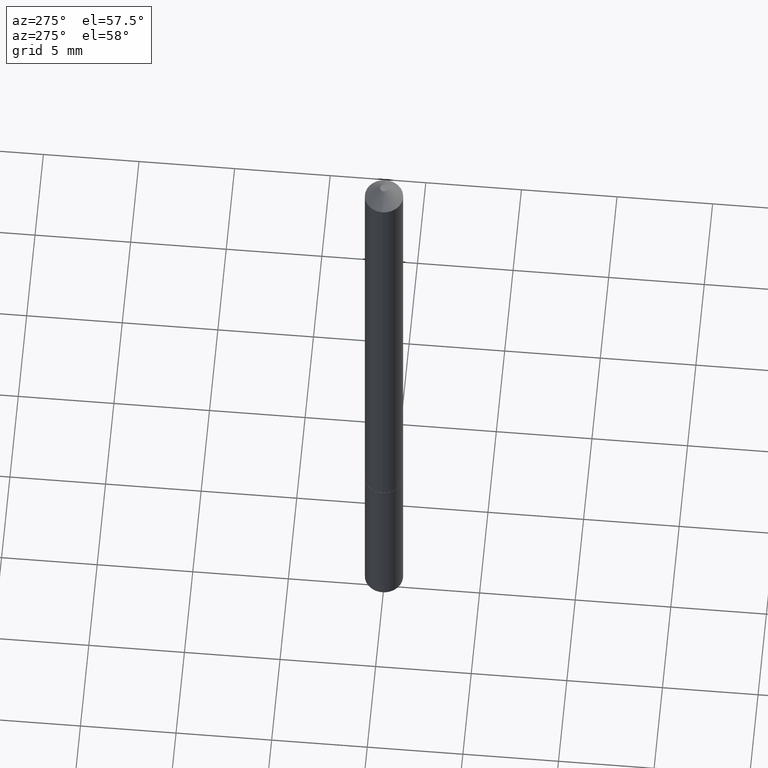
[diagram: clean part render]
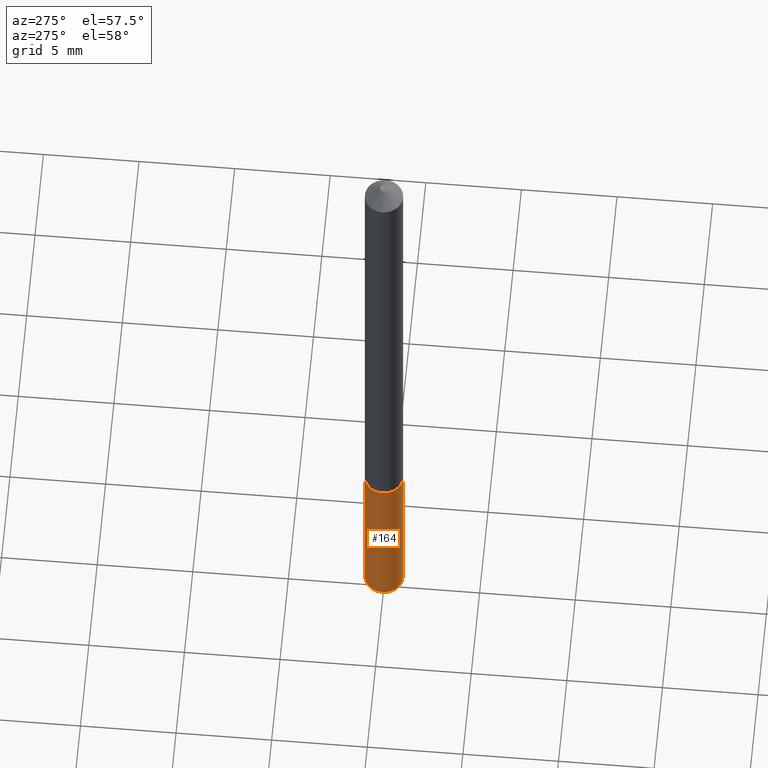
[diagram: same view with one face highlighted and labeled with its STEP entity id]
A machine part, auxiliary view. The second image highlights one B-rep face of the part: STEP entity #164.
In plain terms, the highlighted cylindrical surface (edge-blend (fillet) strip) has radius 0.9995 mm, axis along (-0, 0, 1).
Its self-contained STEP definition (entity closure, byte-faithful):
#25 = VERTEX_POINT ( 'NONE', #63 ) ;
#30 = DIRECTION ( 'NONE',  ( -2.444204879633820850E-29, 3.493291353602861629E-15, 1.000000000000000000 ) ) ;
#33 = DIRECTION ( 'NONE',  ( -2.444204879633820850E-29, 3.493291353602861629E-15, 1.000000000000000000 ) ) ;
#39 = CARTESIAN_POINT ( 'NONE',  ( 2.795985665216356337E-16, 0.03934999999999615194, -1.102400000000000047 ) ) ;
#47 = DIRECTION ( 'NONE',  ( -6.982962677686266711E-15, -1.000000000000000000, 6.942434545525446301E-15 ) ) ;
#48 = DIRECTION ( 'NONE',  ( -2.444204879633820850E-29, 3.493291353602861629E-15, 1.000000000000000000 ) ) ;
#53 = VERTEX_POINT ( 'NONE', #192 ) ;
#55 = EDGE_LOOP ( 'NONE', ( #329, #122, #300, #183 ) ) ;
#56 = VECTOR ( 'NONE', #33, 39.37007874015748143 ) ;
#59 = FACE_OUTER_BOUND ( 'NONE', #55, .T. ) ;
#63 = CARTESIAN_POINT ( 'NONE',  ( -2.747795813669276519E-16, -0.03935000000000385412, -1.102399999999999824 ) ) ;
#81 = DIRECTION ( 'NONE',  ( -6.982962677686266711E-15, -1.000000000000000000, 3.471217272762723151E-15 ) ) ;
#82 = CARTESIAN_POINT ( 'NONE',  ( 3.623161811729646376E-29, -5.174286116107908423E-15, -1.481777771281625133 ) ) ;
#93 = VERTEX_POINT ( 'NONE', #39 ) ;
#96 = EDGE_CURVE ( 'NONE', #53, #93, #281, .T. ) ;
#106 = DIRECTION ( 'NONE',  ( -2.444204879633820850E-29, 3.493291353602861629E-15, 1.000000000000000000 ) ) ;
#118 = CARTESIAN_POINT ( 'NONE',  ( 2.695884811938494470E-29, -3.849009027940684107E-15, -1.102400000000000047 ) ) ;
#122 = ORIENTED_EDGE ( 'NONE', *, *, #287, .T. ) ;
#161 = DIRECTION ( 'NONE',  ( -2.444204879633820850E-29, 3.493291353602861629E-15, 1.000000000000000000 ) ) ;
#163 = LINE ( 'NONE', #256, #182 ) ;
#164 = ADVANCED_FACE ( 'NONE', ( #59 ), #305, .T. ) ;
#180 = EDGE_CURVE ( 'NONE', #347, #25, #163, .T. ) ;
#182 = VECTOR ( 'NONE', #161, 39.37007874015748143 ) ;
#183 = ORIENTED_EDGE ( 'NONE', *, *, #220, .F. ) ;
#189 = AXIS2_PLACEMENT_3D ( 'NONE', #118, #30, #275 ) ;
#192 = CARTESIAN_POINT ( 'NONE',  ( 2.795985665216355844E-16, 0.03934999999999482662, -1.481777771281625355 ) ) ;
#217 = AXIS2_PLACEMENT_3D ( 'NONE', #82, #106, #47 ) ;
#220 = EDGE_CURVE ( 'NONE', #93, #25, #249, .T. ) ;
#223 = CARTESIAN_POINT ( 'NONE',  ( 2.795985665216263153E-16, 0.03934999999999615194, -1.102400000000000047 ) ) ;
#233 = CARTESIAN_POINT ( 'NONE',  ( 2.695884811938494470E-29, -3.849009027940684107E-15, -1.102400000000000047 ) ) ;
#249 = CIRCLE ( 'NONE', #261, 0.03935000000000000303 ) ;
#256 = CARTESIAN_POINT ( 'NONE',  ( -2.747795813669276519E-16, -0.03935000000000385412, -1.102399999999999824 ) ) ;
#261 = AXIS2_PLACEMENT_3D ( 'NONE', #233, #48, #81 ) ;
#275 = DIRECTION ( 'NONE',  ( -6.982962677686266711E-15, -1.000000000000000000, 3.471217272762723151E-15 ) ) ;
#281 = LINE ( 'NONE', #223, #56 ) ;
#287 = EDGE_CURVE ( 'NONE', #53, #347, #334, .T. ) ;
#300 = ORIENTED_EDGE ( 'NONE', *, *, #180, .T. ) ;
#305 = CYLINDRICAL_SURFACE ( 'NONE', #189, 0.03935000000000000303 ) ;
#329 = ORIENTED_EDGE ( 'NONE', *, *, #96, .F. ) ;
#334 = CIRCLE ( 'NONE', #217, 0.03935000000000000303 ) ;
#335 = CARTESIAN_POINT ( 'NONE',  ( -2.747795813669183828E-16, -0.03935000000000517251, -1.481777771281625133 ) ) ;
#347 = VERTEX_POINT ( 'NONE', #335 ) ;